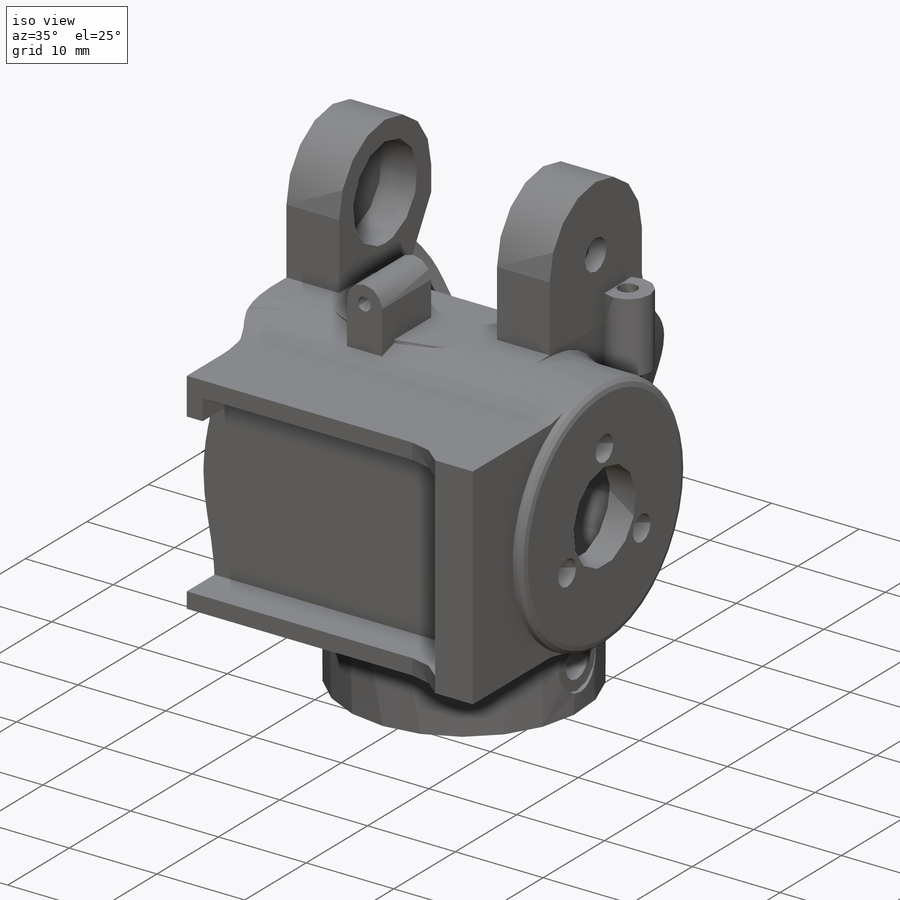
[diagram: iso view]
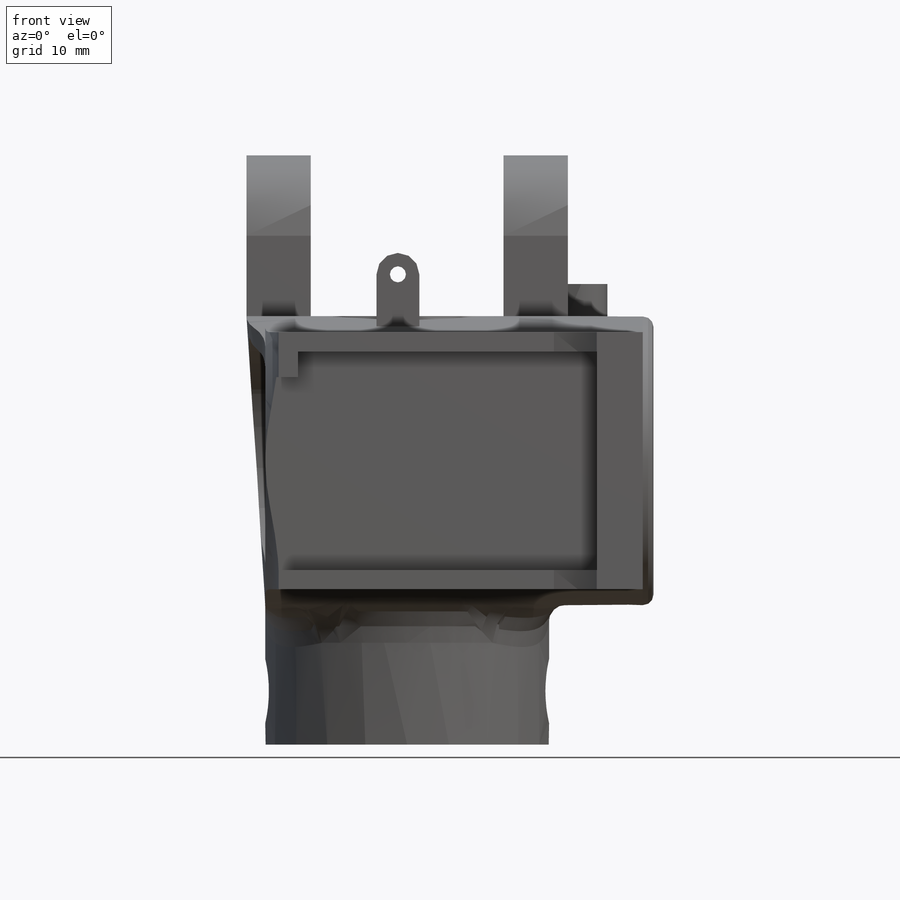
[diagram: front view]
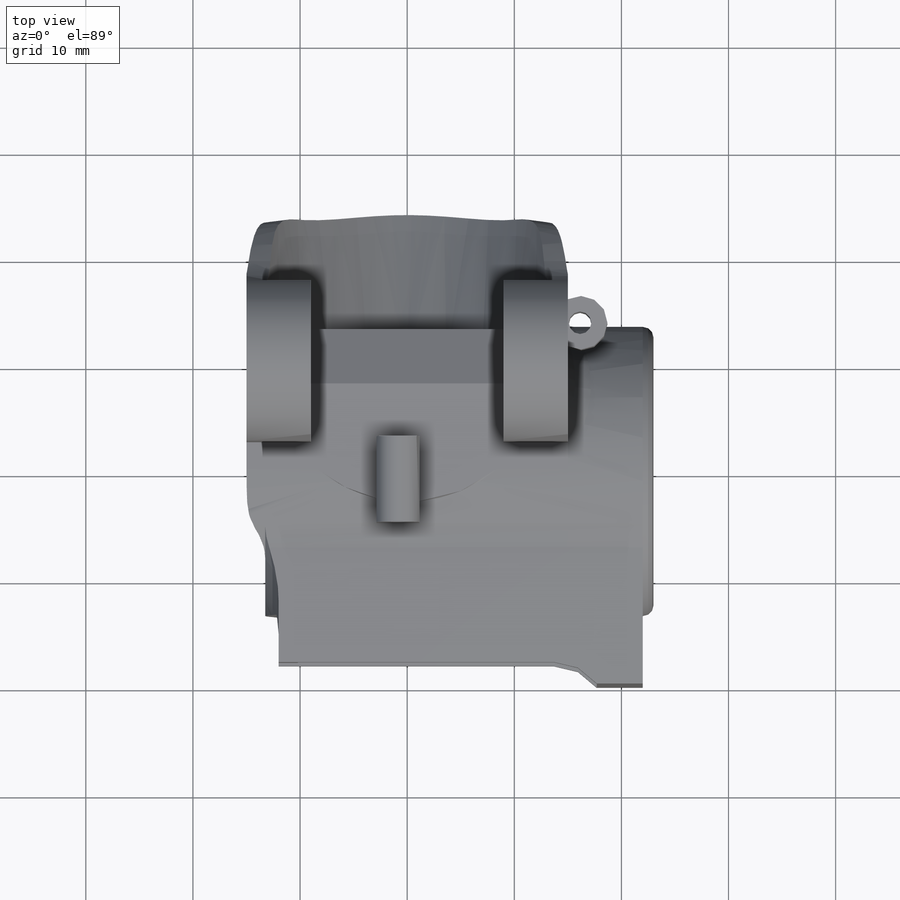
[diagram: top view]
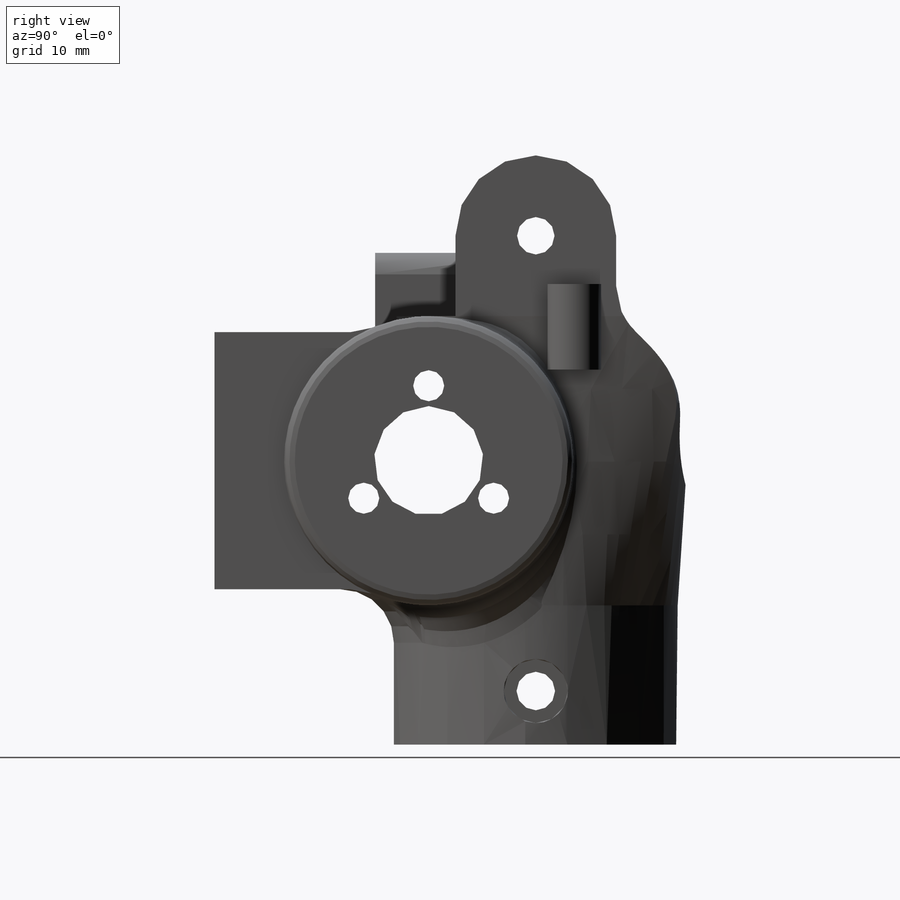
[diagram: right view]
SOLIDWORKS PART (.sldprt)
format: sldprt  version: not decoded by parser v0  size: 862,208 bytes
history: native  units: mm
features: sketch x26, extrude x11, cut_extrude x8, plane x7, fillet x7, hole x2, mirror x2, material x1, cut_revolve x1 (+13 scaffold rows collapsed)
feature tree (78):
  scaffold x13  (default folders/planes/origin — collapsed)
  material  "PLA Black"
  sketch  "Sketch1"  dims[c1.D1=20.0mm c1.D2=20.0mm c2.D1=~23.842666mm c2.D2=19.0mm c2.D4=~11.23739mm c3.D2=1.0mm c3.D1=1.5mm c3.D4=3.0mm c3.D3=3.0mm]
  extrude  "Boss-Extrude1"  Depth=10mm
  plane  "Plane4"
  hole  "M3 Clearance Hole1"  Diameter=3.6mm Depth=26.5mm
  sketch  "Sketch28"
  sketch  "Sketch27"  dims[hole-wizard template sketch: 59 standard entries collapsed; hole parameters kept: c18.Thru Hole Dia.=3.6mm c18.Thru Hole Depth=26.5mm]
  sketch  "Sketch29"  dims[D1=6.0mm]
  cut_extrude  "Cut-Extrude10"  Depth=0.4mm
  mirror  "Mirror11"
  sketch  "Sketch2"
  extrude  "Boss-Extrude2"  Depth=3mm
  plane  "Plane1"  Offset=20mm
  sketch  "Sketch3"  dims[c1.D1=25.0mm c1.D2=25.0mm c1.D3=8.0mm c1.D4=2.1mm c2.D1=22.0mm c2.D2=1.0mm c2.D5=7.0mm c3.D2=2.5mm c3.D3=10.0mm]
  extrude  "Boss-Extrude3"  Depth=3mm
  plane  "Plane2"
  sketch  "Sketch7"  dims[D1=30.0mm D2=30.0mm]
  sketch  "Sketch55"
  cut_extrude  "Cut-Extrude20"  [1 undecoded]
  sketch  "Sketch8"  dims[D1=2.0mm]
  cut_extrude  "Cut-Extrude1"  [1 undecoded]
  sketch  "Sketch10"  dims[D1=10.2mm]
  cut_extrude  "Cut-Extrude3"  [1 undecoded]
  hole  "M2.5 Clearance Hole1"  Diameter=2.9mm Depth=38.920719mm
  sketch  "Sketch13"  dims[D1=7.0mm D2=3.0]
  sketch  "Sketch12"  dims[hole-wizard template sketch: 60 standard entries collapsed; hole parameters kept: c18.Thru Hole Depth=~38.920719mm]
  sketch  "Sketch16"  dims[D1=6.0mm D2=18.0mm D3=15.0mm]
  extrude  "Boss-Extrude8"  Depth=15mm
  sketch  "Sketch17"  dims[c1.D1=10.0mm c1.D2=1.0mm c1.D3=1.0mm c2.D1=10.0mm]
  cut_extrude  "Cut-Extrude13"  [1 undecoded]
  sketch  "Sketch37"  dims[D1=10.5mm]
  cut_extrude  "Cut-Extrude14"  Depth=4.1mm
  mirror  "Mirror12"
  fillet  "Fillet2"  Radius=1mm
  plane  "Plane5"  Offset=7mm
  sketch  "Sketch30"  dims[D1=1.5mm D2=1.25mm D3=3.175mm]
  extrude  "Boss-Extrude10"  Depth=8mm
  plane  "Plane7"  Offset=33mm
  sketch  "Sketch36"  dims[c1.D2=2.101mm c1.D3=2.5mm c1.D4=0.979mm c1.D5=2.5mm c1.D1=3.175mm c2.D3=0.4895mm c2.D4=1.146mm c2.D1=3.6mm c2.D5=1.5mm]
  extrude  "Boss-Extrude14"  Depth=8mm
  sketch  "Sketch39"  dims[c1.D1=~26.022707mm c2.D1=120.0deg]
  sketch  "Sketch51"  dims[c1.D1=13.05mm c1.D2=7.9mm c2.D1=13.15mm]
  cut_revolve  "Cut-Revolve3"  Angle=360deg
  plane  "Plane13"
  sketch  "Sketch52"  dims[D1=6.0mm D2=0.0mm D3=15.0mm]
  cut_extrude  "Cut-Extrude18"  [1 undecoded]
  sketch  "Sketch53"  dims[D1=0.0mm]
  extrude  "Boss-Extrude17"  [1 undecoded]
  sketch  "Sketch54"
  cut_extrude  "Cut-Extrude19"  Depth=3.3mm
  fillet  "Fillet6"  Radius=5.9mm
  fillet  "Fillet7"  Radius=5.9mm
  fillet  "Fillet8"  Radius=3.9mm
  fillet  "Fillet5"  Radius=5.9mm
  sketch  "Sketch56"  dims[D1=13.05mm]
  extrude  "Boss-Extrude18"  [1 undecoded]
  plane  "Plane14"
  sketch  "Sketch57"  dims[D1=34.0mm D2=24.0mm D3=~24.014455mm]
  extrude  "Boss-Extrude19"  [1 undecoded]
  sketch  "Sketch58"  dims[D2=2.4mm D1=1.8mm]
  extrude  "Boss-Extrude20"  Depth=4.5mm
  sketch  "Sketch59"  dims[D1=2.5mm]
  extrude  "Boss-Extrude21"  Depth=2mm
  fillet  "Fillet9"  Radius=5mm
  fillet  "Fillet10"  Radius=6mm
decode coverage: 43 of 57 modeling features carry decoded parameters
note: ~ marks probable driven/reference dimensions
note: 8 parameter values undecoded
summary: no parameter record found for 8 features
note: suppression state not decoded; provenance and decode notes live in map.json
